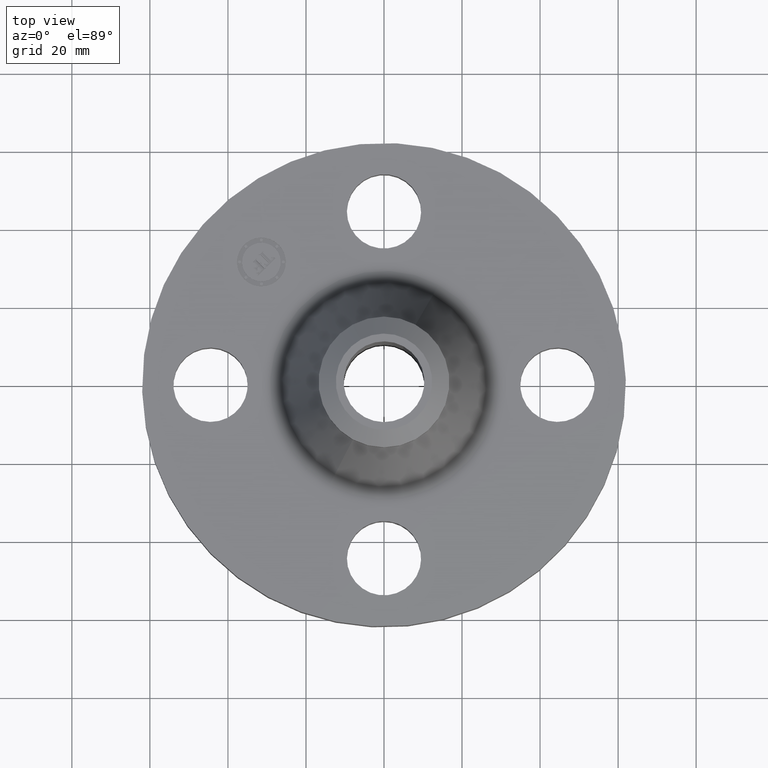
[diagram: clean part render]
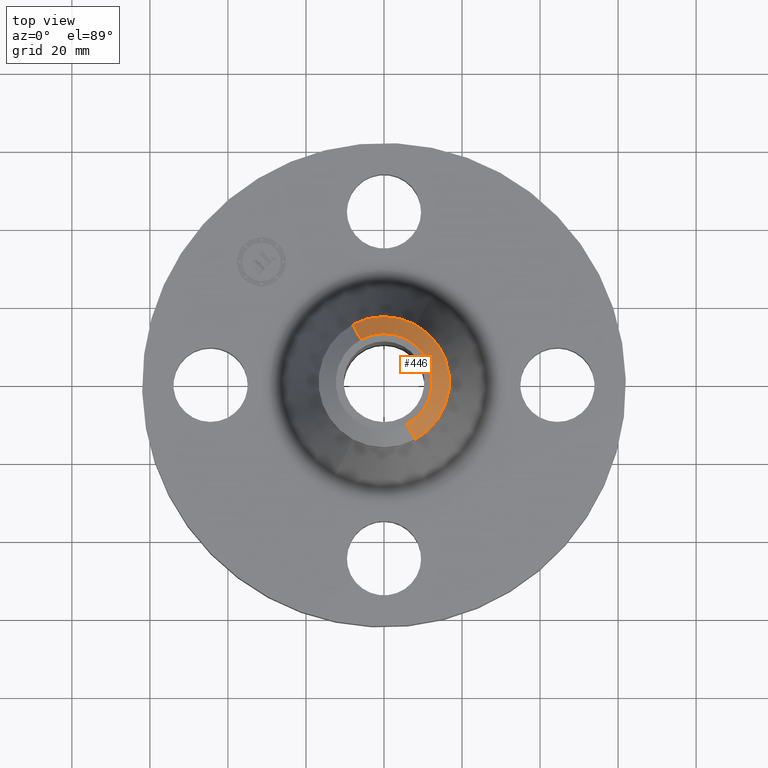
[diagram: same view with one face highlighted and labeled with its STEP entity id]
A machine part, top view. The second image highlights one B-rep face of the part: STEP entity #446.
In plain terms, the highlighted conical surface has half-angle 52.5 deg.
Its self-contained STEP definition (entity closure, byte-faithful):
#293=AXIS2_PLACEMENT_3D('Circle Axis2P3D',#291,#292,$) ;
#320=AXIS2_PLACEMENT_3D('Circle Axis2P3D',#318,#319,$) ;
#334=AXIS2_PLACEMENT_3D('Cone Axis2P3D',#331,#332,#333) ;
#427=AXIS2_PLACEMENT_3D('Circle Axis2P3D',#425,#426,$) ;
#288=CARTESIAN_POINT('Vertex',(0.31642085548,0.57920449085,2.24666938342)) ;
#291=CARTESIAN_POINT('Axis2P3D Location',(0.,0.,2.24666938342)) ;
#295=CARTESIAN_POINT('Vertex',(0.31642085548,-0.57920449085,2.24666938342)) ;
#315=CARTESIAN_POINT('Vertex',(-0.31642085548,0.57920449085,2.24666938342)) ;
#318=CARTESIAN_POINT('Axis2P3D Location',(0.,0.,2.24666938342)) ;
#331=CARTESIAN_POINT('Axis2P3D Location',(0.,0.,2.38000000001)) ;
#336=CARTESIAN_POINT('Line Origine',(0.274768402436,-0.502960186973,2.31333469171)) ;
#340=CARTESIAN_POINT('Vertex',(0.233115949392,-0.426715883097,2.38000000001)) ;
#347=CARTESIAN_POINT('Vertex',(-0.233115949392,0.426715883097,2.38000000001)) ;
#350=CARTESIAN_POINT('Line Origine',(-0.274768402436,0.502960186973,2.31333469171)) ;
#425=CARTESIAN_POINT('Axis2P3D Location',(0.,0.,2.38000000001)) ;
#292=DIRECTION('Axis2P3D Direction',(0.,0.,-0.0393700787402)) ;
#319=DIRECTION('Axis2P3D Direction',(0.,0.,-0.0393700787402)) ;
#332=DIRECTION('Axis2P3D Direction',(-0.,-0.,-0.0393700787402)) ;
#333=DIRECTION('Axis2P3D XDirection',(-0.0188750212049,0.0345504945626,0.)) ;
#337=DIRECTION('Vector Direction',(0.014974561121,-0.02741075027,-0.023966985394)) ;
#351=DIRECTION('Vector Direction',(-0.014974561121,0.02741075027,-0.023966985394)) ;
#426=DIRECTION('Axis2P3D Direction',(0.,0.,-0.0393700787402)) ;
#338=VECTOR('Line Direction',#337,0.0393700787402) ;
#352=VECTOR('Line Direction',#351,0.0393700787402) ;
#440=ORIENTED_EDGE('',*,*,#354,.F.) ;
#441=ORIENTED_EDGE('',*,*,#429,.F.) ;
#442=ORIENTED_EDGE('',*,*,#342,.T.) ;
#443=ORIENTED_EDGE('',*,*,#297,.T.) ;
#444=ORIENTED_EDGE('',*,*,#322,.F.) ;
#446=ADVANCED_FACE('PartBody',(#445),#335,.T.) ;
#294=CIRCLE('generated circle',#293,0.660000000003) ;
#321=CIRCLE('generated circle',#320,0.660000000003) ;
#428=CIRCLE('generated circle',#427,0.486240157482) ;
#335=CONICAL_SURFACE('Cone',#334,0.486240157482,0.916297857297) ;
#297=EDGE_CURVE('',#296,#289,#294,.F.) ;
#322=EDGE_CURVE('',#316,#289,#321,.T.) ;
#342=EDGE_CURVE('',#341,#296,#339,.T.) ;
#354=EDGE_CURVE('',#348,#316,#353,.T.) ;
#429=EDGE_CURVE('',#341,#348,#428,.F.) ;
#439=EDGE_LOOP('',(#440,#441,#442,#443,#444)) ;
#445=FACE_OUTER_BOUND('',#439,.T.) ;
#339=LINE('Line',#336,#338) ;
#353=LINE('Line',#350,#352) ;
#289=VERTEX_POINT('',#288) ;
#296=VERTEX_POINT('',#295) ;
#316=VERTEX_POINT('',#315) ;
#341=VERTEX_POINT('',#340) ;
#348=VERTEX_POINT('',#347) ;